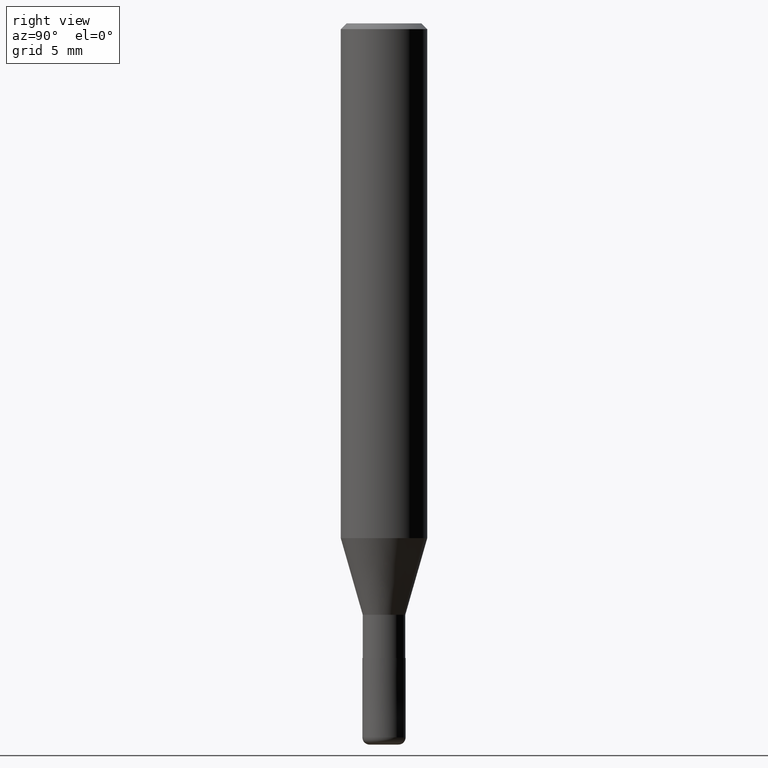
[diagram: clean part render]
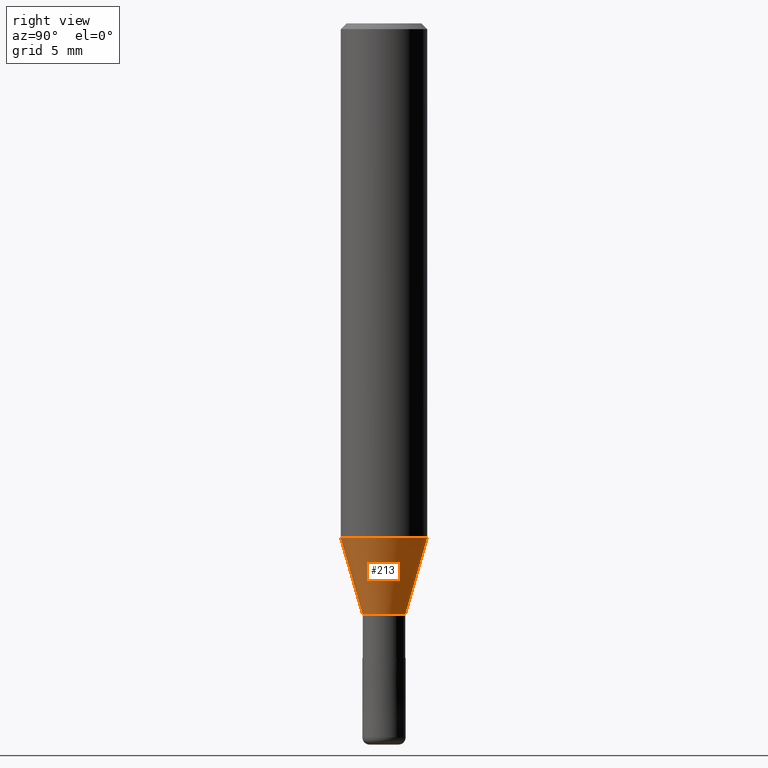
[diagram: same view with one face highlighted and labeled with its STEP entity id]
A machine part, right view. The second image highlights one B-rep face of the part: STEP entity #213.
In plain terms, the highlighted conical surface has half-angle 16.001 deg.
Its self-contained STEP definition (entity closure, byte-faithful):
#129=VERTEX_POINT('',#333);
#149=EDGE_CURVE('',#203,#129,#355,.T.);
#177=EDGE_CURVE('',#275,#203,#386,.T.);
#187=VERTEX_POINT('',#397);
#203=VERTEX_POINT('',#414);
#207=EDGE_CURVE('',#187,#129,#418,.T.);
#213=ADVANCED_FACE('',(#424),#425,.T.);
#247=EDGE_CURVE('',#187,#275,#464,.T.);
#275=VERTEX_POINT('',#499);
#333=CARTESIAN_POINT('',(3.67375783114944E-016,-2.99995,-35.682));
#355=LINE('',#582,#583);
#386=CIRCLE('',#622,1.47495);
#397=CARTESIAN_POINT('',(0.0,2.99995,-35.682));
#414=CARTESIAN_POINT('',(1.80623314157032E-016,-1.47495,-41.0));
#418=CIRCLE('',#668,2.99995);
#424=FACE_OUTER_BOUND('',#675,.T.);
#425=CONICAL_SURFACE('',#676,2.23745,0.279267977304115);
#464=LINE('',#725,#726);
#499=CARTESIAN_POINT('',(0.0,1.47495,-41.0));
#582=CARTESIAN_POINT('',(2.73999548635988E-016,-2.23745,-38.341));
#583=VECTOR('',#844,1.0);
#622=AXIS2_PLACEMENT_3D('',#885,#886,#887);
#668=AXIS2_PLACEMENT_3D('',#923,#924,#925);
#675=EDGE_LOOP('',(#930,#931,#932,#933));
#676=AXIS2_PLACEMENT_3D('',#934,#935,#936);
#725=CARTESIAN_POINT('',(-2.73999548635988E-016,2.23745,-38.341));
#726=VECTOR('',#986,1.0);
#844=DIRECTION('',(3.37565264353533E-017,-0.275652060190515,0.961257479405349));
#885=CARTESIAN_POINT('',(0.0,0.0,-41.0));
#886=DIRECTION('',(0.0,0.0,-1.0));
#887=DIRECTION('',(0.0,1.0,0.0));
#923=CARTESIAN_POINT('',(0.0,0.0,-35.682));
#924=DIRECTION('',(0.0,0.0,-1.0));
#925=DIRECTION('',(0.0,1.0,0.0));
#930=ORIENTED_EDGE('',*,*,#247,.F.);
#931=ORIENTED_EDGE('',*,*,#207,.T.);
#932=ORIENTED_EDGE('',*,*,#149,.F.);
#933=ORIENTED_EDGE('',*,*,#177,.F.);
#934=CARTESIAN_POINT('',(0.0,0.0,-38.341));
#935=DIRECTION('',(-0.0,-0.0,1.0));
#936=DIRECTION('',(0.0,1.0,0.0));
#986=DIRECTION('',(3.37565264353533E-017,-0.275652060190515,-0.961257479405349));